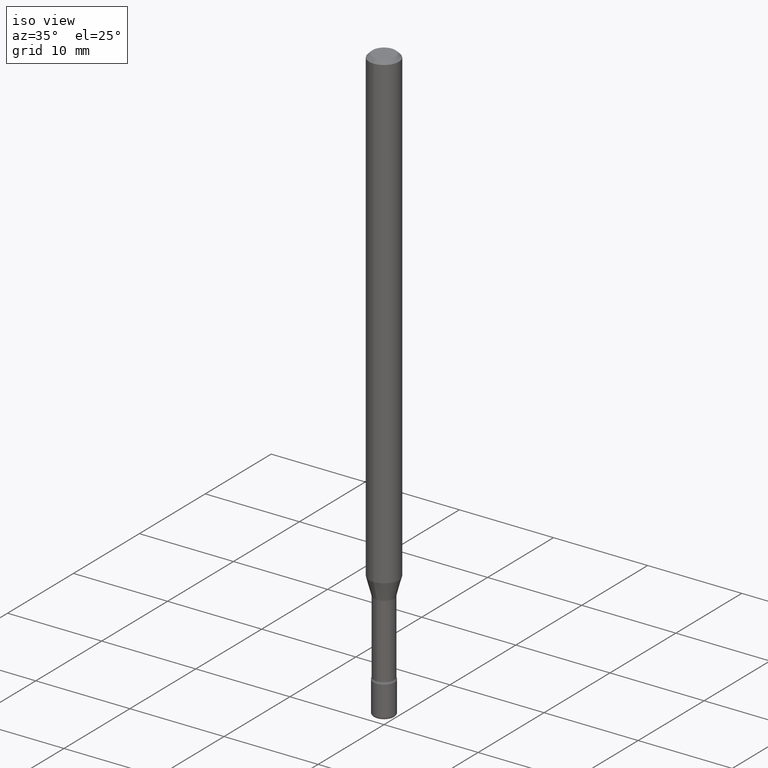
[diagram: clean part render]
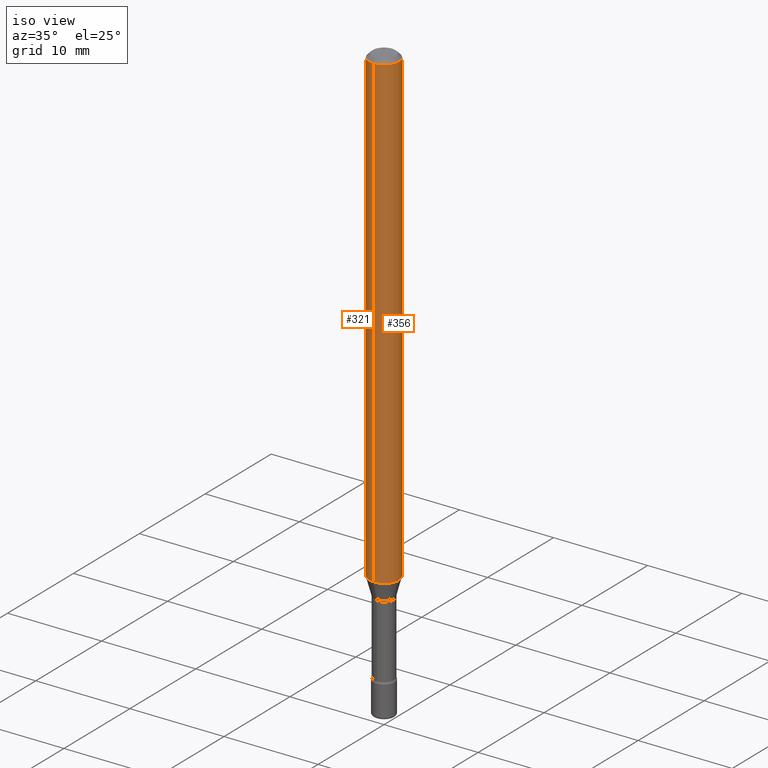
[diagram: same view with one multi-face feature highlighted, each face labeled with its STEP entity id]
A machine part, iso view. The highlighted faces form ONE feature: a constant-radius fillet chain: 2 tangent blend faces with common blend radius 1.5875 mm. The faces share edges in the B-rep.
Their STEP definitions:
[1] entity #321 (Cylinder):
#13 = DIRECTION ( 'NONE',  ( -6.982962677686265922E-15, -1.000000000000000000, 3.491643676072219943E-15 ) ) ;
#29 = DIRECTION ( 'NONE',  ( -2.445355446703953584E-29, 3.491643676072220337E-15, 1.000000000000000000 ) ) ;
#46 = VERTEX_POINT ( 'NONE', #526 ) ;
#61 = CARTESIAN_POINT ( 'NONE',  ( -4.364351673553916201E-16, -0.06250000000000000000, 6.963011286457598096E-16 ) ) ;
#62 = DIRECTION ( 'NONE',  ( -6.982962677686265922E-15, -1.000000000000000000, 3.483106191921935554E-15 ) ) ;
#63 = FACE_OUTER_BOUND ( 'NONE', #402, .T. ) ;
#65 = VECTOR ( 'NONE', #29, 39.37007874015748143 ) ;
#76 = EDGE_CURVE ( 'NONE', #46, #198, #331, .T. ) ;
#79 = CARTESIAN_POINT ( 'NONE',  ( 4.440892098500625669E-16, 0.06250000000000000000, 2.598456691367323168E-16 ) ) ;
#105 = CARTESIAN_POINT ( 'NONE',  ( -4.364351673553912750E-16, -0.06250000000000005551, -0.01499999999999981036 ) ) ;
#115 = DIRECTION ( 'NONE',  ( -2.445355446703953584E-29, 3.491643676072220337E-15, 1.000000000000000000 ) ) ;
#141 = ORIENTED_EDGE ( 'NONE', *, *, #183, .F. ) ;
#142 = CIRCLE ( 'NONE', #197, 0.06250000000000000000 ) ;
#154 = DIRECTION ( 'NONE',  ( -2.445355446703953584E-29, 3.491643676072220337E-15, 1.000000000000000000 ) ) ;
#160 = DIRECTION ( 'NONE',  ( -6.982962677686265922E-15, -1.000000000000000000, 4.370956789862821150E-15 ) ) ;
#183 = EDGE_CURVE ( 'NONE', #198, #290, #350, .T. ) ;
#196 = CYLINDRICAL_SURFACE ( 'NONE', #511, 0.06250000000000000000 ) ;
#197 = AXIS2_PLACEMENT_3D ( 'NONE', #202, #549, #160 ) ;
#198 = VERTEX_POINT ( 'NONE', #286 ) ;
#202 = CARTESIAN_POINT ( 'NONE',  ( 4.828629612195885347E-29, -6.894643505607286140E-15, -1.974612573687109185 ) ) ;
#215 = EDGE_CURVE ( 'NONE', #46, #318, #142, .T. ) ;
#232 = DIRECTION ( 'NONE',  ( -2.445355446703953584E-29, 3.491643676072220337E-15, 1.000000000000000000 ) ) ;
#240 = ORIENTED_EDGE ( 'NONE', *, *, #215, .T. ) ;
#286 = CARTESIAN_POINT ( 'NONE',  ( 4.440892098501112297E-16, 0.06249999999999995837, -0.01500000000000024578 ) ) ;
#290 = VERTEX_POINT ( 'NONE', #105 ) ;
#318 = VERTEX_POINT ( 'NONE', #405 ) ;
#321 = ADVANCED_FACE ( 'NONE', ( #63 ), #196, .T. ) ;
#322 = ORIENTED_EDGE ( 'NONE', *, *, #76, .F. ) ;
#327 = CARTESIAN_POINT ( 'NONE',  ( -1.169113584055446105E-44, 1.669184350826100908E-30, 4.780733988912460139E-16 ) ) ;
#331 = LINE ( 'NONE', #79, #65 ) ;
#350 = CIRCLE ( 'NONE', #521, 0.06250000000000000000 ) ;
#363 = LINE ( 'NONE', #61, #377 ) ;
#377 = VECTOR ( 'NONE', #232, 39.37007874015748143 ) ;
#383 = EDGE_CURVE ( 'NONE', #318, #290, #363, .T. ) ;
#402 = EDGE_LOOP ( 'NONE', ( #322, #240, #567, #141 ) ) ;
#405 = CARTESIAN_POINT ( 'NONE',  ( -4.364351673553431052E-16, -0.06250000000000686950, -1.974612573687108963 ) ) ;
#500 = CARTESIAN_POINT ( 'NONE',  ( 3.668033170055936927E-31, -5.237465514108340440E-17, -0.01500000000000002720 ) ) ;
#511 = AXIS2_PLACEMENT_3D ( 'NONE', #327, #154, #13 ) ;
#521 = AXIS2_PLACEMENT_3D ( 'NONE', #500, #115, #62 ) ;
#526 = CARTESIAN_POINT ( 'NONE',  ( 4.440892098501110325E-16, 0.06249999999999313743, -1.974612573687109629 ) ) ;
#549 = DIRECTION ( 'NONE',  ( -2.445355446703953584E-29, 3.491643676072220337E-15, 1.000000000000000000 ) ) ;
#567 = ORIENTED_EDGE ( 'NONE', *, *, #383, .T. ) ;
[2] entity #356 (Cylinder):
#22 = CYLINDRICAL_SURFACE ( 'NONE', #56, 0.06250000000000000000 ) ;
#29 = DIRECTION ( 'NONE',  ( -2.445355446703953584E-29, 3.491643676072220337E-15, 1.000000000000000000 ) ) ;
#46 = VERTEX_POINT ( 'NONE', #526 ) ;
#56 = AXIS2_PLACEMENT_3D ( 'NONE', #186, #313, #497 ) ;
#61 = CARTESIAN_POINT ( 'NONE',  ( -4.364351673553916201E-16, -0.06250000000000000000, 6.963011286457598096E-16 ) ) ;
#65 = VECTOR ( 'NONE', #29, 39.37007874015748143 ) ;
#76 = EDGE_CURVE ( 'NONE', #46, #198, #331, .T. ) ;
#78 = AXIS2_PLACEMENT_3D ( 'NONE', #399, #200, #368 ) ;
#79 = CARTESIAN_POINT ( 'NONE',  ( 4.440892098500625669E-16, 0.06250000000000000000, 2.598456691367323168E-16 ) ) ;
#105 = CARTESIAN_POINT ( 'NONE',  ( -4.364351673553912750E-16, -0.06250000000000005551, -0.01499999999999981036 ) ) ;
#149 = CARTESIAN_POINT ( 'NONE',  ( 4.828629612195885347E-29, -6.894643505607286140E-15, -1.974612573687109185 ) ) ;
#153 = ORIENTED_EDGE ( 'NONE', *, *, #413, .F. ) ;
#161 = AXIS2_PLACEMENT_3D ( 'NONE', #149, #275, #287 ) ;
#186 = CARTESIAN_POINT ( 'NONE',  ( -1.169113584055446105E-44, 1.669184350826100908E-30, 4.780733988912460139E-16 ) ) ;
#198 = VERTEX_POINT ( 'NONE', #286 ) ;
#200 = DIRECTION ( 'NONE',  ( -2.445355446703953584E-29, 3.491643676072220337E-15, 1.000000000000000000 ) ) ;
#228 = ORIENTED_EDGE ( 'NONE', *, *, #383, .F. ) ;
#232 = DIRECTION ( 'NONE',  ( -2.445355446703953584E-29, 3.491643676072220337E-15, 1.000000000000000000 ) ) ;
#238 = ORIENTED_EDGE ( 'NONE', *, *, #293, .T. ) ;
#275 = DIRECTION ( 'NONE',  ( -2.445355446703953584E-29, 3.491643676072220337E-15, 1.000000000000000000 ) ) ;
#286 = CARTESIAN_POINT ( 'NONE',  ( 4.440892098501112297E-16, 0.06249999999999995837, -0.01500000000000024578 ) ) ;
#287 = DIRECTION ( 'NONE',  ( -6.982962677686265922E-15, -1.000000000000000000, 4.370956789862821150E-15 ) ) ;
#290 = VERTEX_POINT ( 'NONE', #105 ) ;
#293 = EDGE_CURVE ( 'NONE', #318, #46, #421, .T. ) ;
#313 = DIRECTION ( 'NONE',  ( -2.445355446703953584E-29, 3.491643676072220337E-15, 1.000000000000000000 ) ) ;
#318 = VERTEX_POINT ( 'NONE', #405 ) ;
#331 = LINE ( 'NONE', #79, #65 ) ;
#356 = ADVANCED_FACE ( 'NONE', ( #462 ), #22, .T. ) ;
#363 = LINE ( 'NONE', #61, #377 ) ;
#367 = ORIENTED_EDGE ( 'NONE', *, *, #76, .T. ) ;
#368 = DIRECTION ( 'NONE',  ( -6.982962677686265922E-15, -1.000000000000000000, 3.483106191921935554E-15 ) ) ;
#377 = VECTOR ( 'NONE', #232, 39.37007874015748143 ) ;
#383 = EDGE_CURVE ( 'NONE', #318, #290, #363, .T. ) ;
#399 = CARTESIAN_POINT ( 'NONE',  ( 3.668033170055936927E-31, -5.237465514108340440E-17, -0.01500000000000002720 ) ) ;
#405 = CARTESIAN_POINT ( 'NONE',  ( -4.364351673553431052E-16, -0.06250000000000686950, -1.974612573687108963 ) ) ;
#413 = EDGE_CURVE ( 'NONE', #290, #198, #537, .T. ) ;
#421 = CIRCLE ( 'NONE', #161, 0.06250000000000000000 ) ;
#456 = EDGE_LOOP ( 'NONE', ( #238, #367, #153, #228 ) ) ;
#462 = FACE_OUTER_BOUND ( 'NONE', #456, .T. ) ;
#497 = DIRECTION ( 'NONE',  ( -6.982962677686265922E-15, -1.000000000000000000, 3.491643676072219943E-15 ) ) ;
#526 = CARTESIAN_POINT ( 'NONE',  ( 4.440892098501110325E-16, 0.06249999999999313743, -1.974612573687109629 ) ) ;
#537 = CIRCLE ( 'NONE', #78, 0.06250000000000000000 ) ;